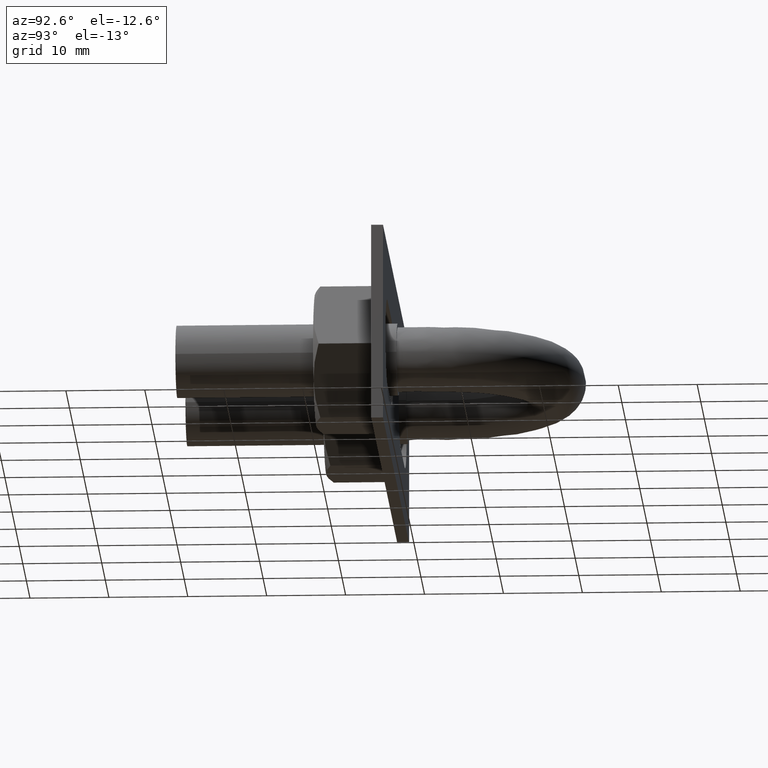
[diagram: clean part render]
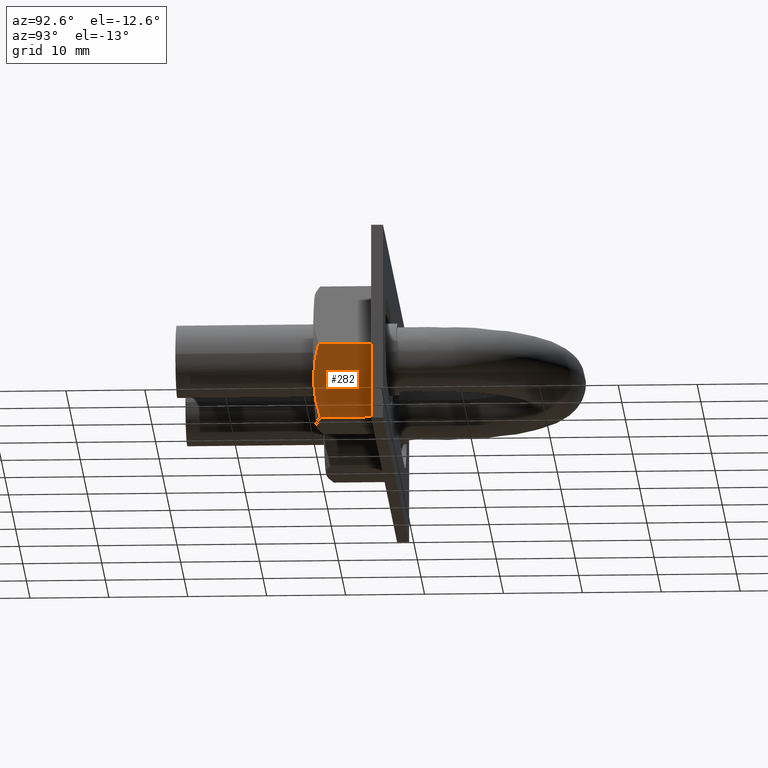
[diagram: same view with one face highlighted and labeled with its STEP entity id]
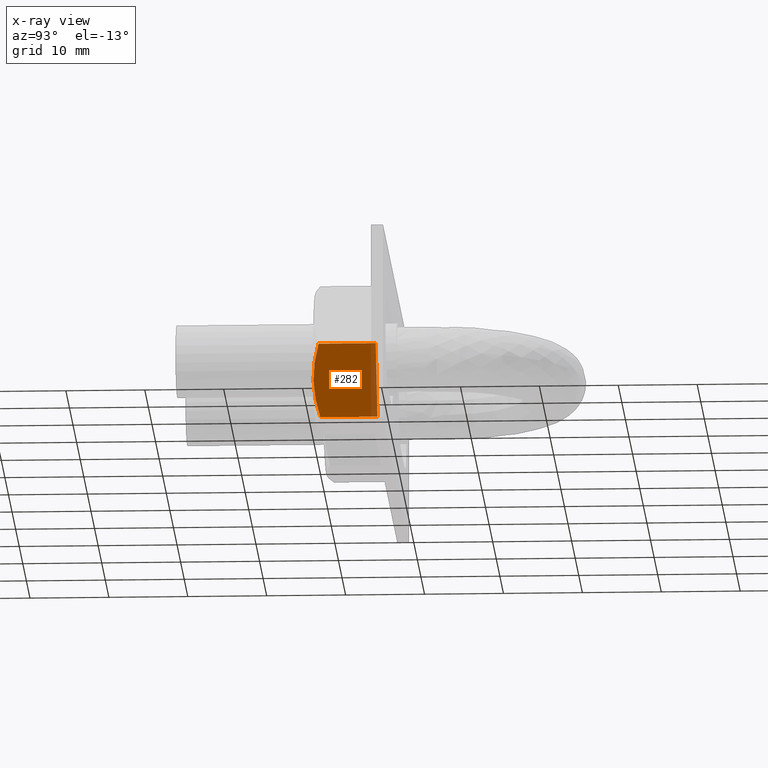
[diagram: x-ray of the same camera — body ghosted, the highlighted face saturated]
A machine part, auxiliary view. The second image highlights one B-rep face of the part: STEP entity #282.
The next image is the same camera in x-ray: the body ghosted, the highlighted face saturated — about 9% of this face is hidden behind the body in this view.
In plain terms, the highlighted planar face has unit normal (-0.866, 0, 0.5).
Its self-contained STEP definition (entity closure, byte-faithful):
#282 = ADVANCED_FACE( '', ( #433 ), #434, .F. );
#433 = FACE_OUTER_BOUND( '', #753, .T. );
#434 = PLANE( '', #754 );
#753 = EDGE_LOOP( '', ( #1247, #1248, #1249, #1250, #1251 ) );
#754 = AXIS2_PLACEMENT_3D( '', #1252, #1253, #1254 );
#1247 = ORIENTED_EDGE( '', *, *, #1418, .F. );
#1248 = ORIENTED_EDGE( '', *, *, #1451, .F. );
#1249 = ORIENTED_EDGE( '', *, *, #1452, .F. );
#1250 = ORIENTED_EDGE( '', *, *, #1425, .F. );
#1251 = ORIENTED_EDGE( '', *, *, #1445, .F. );
#1252 = CARTESIAN_POINT( '', ( 23.8149545762236, -2.38000000000001, 3.67977546610776E-032 ) );
#1253 = DIRECTION( '', ( -0.866025403784439, 5.30270106023007E-017, 0.500000000000000 ) );
#1254 = DIRECTION( '', ( 0.500000000000000, -3.06151588455594E-017, 0.866025403784439 ) );
#1418 = EDGE_CURVE( '', #1647, #1660, #1661, .T. );
#1425 = EDGE_CURVE( '', #1671, #1673, #1674, .T. );
#1445 = EDGE_CURVE( '', #1660, #1671, #1704, .T. );
#1451 = EDGE_CURVE( '', #1712, #1647, #1713, .T. );
#1452 = EDGE_CURVE( '', #1673, #1712, #1714, .F. );
#1647 = VERTEX_POINT( '', #2059 );
#1660 = VERTEX_POINT( '', #2080 );
#1661 = B_SPLINE_CURVE_WITH_KNOTS( '', 3, ( #2081, #2082, #2083, #2084, #2085, #2086, #2087, #2088 ), .UNSPECIFIED., .F., .F., ( 4, 2, 2, 4 ), ( 0.00493529902949373, 0.00616408349151779, 0.00739286795354186, 0.00985043687758998 ), .UNSPECIFIED. );
#1671 = VERTEX_POINT( '', #2099 );
#1673 = VERTEX_POINT( '', #2101 );
#1674 = LINE( '', #2102, #2103 );
#1704 = LINE( '', #2171, #2172 );
#1712 = VERTEX_POINT( '', #2192 );
#1713 = B_SPLINE_CURVE_WITH_KNOTS( '', 3, ( #2193, #2194, #2195, #2196, #2197, #2198 ), .UNSPECIFIED., .F., .F., ( 4, 2, 4 ), ( 7.17194508351968E-007, 0.00246800811200104, 0.00493529902949373 ), .UNSPECIFIED. );
#1714 = LINE( '', #2199, #2200 );
#2059 = CARTESIAN_POINT( '', ( 21.3612159321677, -10.3800000000000, -4.25000000000000 ) );
#2080 = CARTESIAN_POINT( '', ( 23.7999656118192, -9.62944465005349, -0.0259616479013788 ) );
#2081 = CARTESIAN_POINT( '', ( 21.3612159321677, -10.3800000000000, -4.25000000000000 ) );
#2082 = CARTESIAN_POINT( '', ( 21.5680707460432, -10.3800000000000, -3.89171695257749 ) );
#2083 = CARTESIAN_POINT( '', ( 21.7759593429690, -10.3622887858780, -3.53164334038783 ) );
#2084 = CARTESIAN_POINT( '', ( 22.1872154329965, -10.2936979023202, -2.81932689753803 ) );
#2085 = CARTESIAN_POINT( '', ( 22.3914764911661, -10.2428885136661, -2.46553636678045 ) );
#2086 = CARTESIAN_POINT( '', ( 23.0006497745581, -10.0468508935345, -1.41041728933201 ) );
#2087 = CARTESIAN_POINT( '', ( 23.4019654977714, -9.85817495561506, -0.715318066850384 ) );
#2088 = CARTESIAN_POINT( '', ( 23.7999656118192, -9.62944465005349, -0.0259616479013792 ) );
#2099 = CARTESIAN_POINT( '', ( 23.7999656118192, -2.38000000000001, -0.0259616479013813 ) );
#2101 = CARTESIAN_POINT( '', ( 18.9224662525163, -2.38000000000001, -8.47403835209862 ) );
#2102 = CARTESIAN_POINT( '', ( 18.9112159321677, -2.38000000000001, -8.49352447854375 ) );
#2103 = VECTOR( '', #2425, 1000.00000000000 );
#2171 = CARTESIAN_POINT( '', ( 23.7999656118192, -2.38000000000001, -0.0259616479013807 ) );
#2172 = VECTOR( '', #2450, 1000.00000000000 );
#2192 = CARTESIAN_POINT( '', ( 18.9224662525163, -9.62944465005349, -8.47403835209862 ) );
#2193 = CARTESIAN_POINT( '', ( 18.9224662525163, -9.62944465005349, -8.47403835209862 ) );
#2194 = CARTESIAN_POINT( '', ( 19.3215180192883, -9.85877933948449, -7.78286041719930 ) );
#2195 = CARTESIAN_POINT( '', ( 19.7234521124811, -10.0475470520196, -7.08669014649529 ) );
#2196 = CARTESIAN_POINT( '', ( 20.5355975738497, -10.3085849074241, -5.68001294426847 ) );
#2197 = CARTESIAN_POINT( '', ( 20.9458696942491, -10.3800000000000, -4.96940078680768 ) );
#2198 = CARTESIAN_POINT( '', ( 21.3612159321677, -10.3800000000000, -4.25000000000000 ) );
#2199 = CARTESIAN_POINT( '', ( 18.9224662525163, -2.38000000000001, -8.47403835209862 ) );
#2200 = VECTOR( '', #2456, 1000.00000000000 );
#2425 = DIRECTION( '', ( -0.500000000000000, 3.06151588455594E-017, -0.866025403784439 ) );
#2450 = DIRECTION( '', ( 6.12303176911189E-017, 1.00000000000000, -4.95179021115217E-066 ) );
#2456 = DIRECTION( '', ( 6.12303176911189E-017, 1.00000000000000, -4.95179021115217E-066 ) );